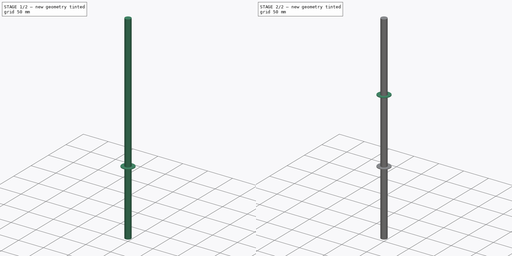
[diagram: build sequence overview — one tinted view per stage of 2, left to right]
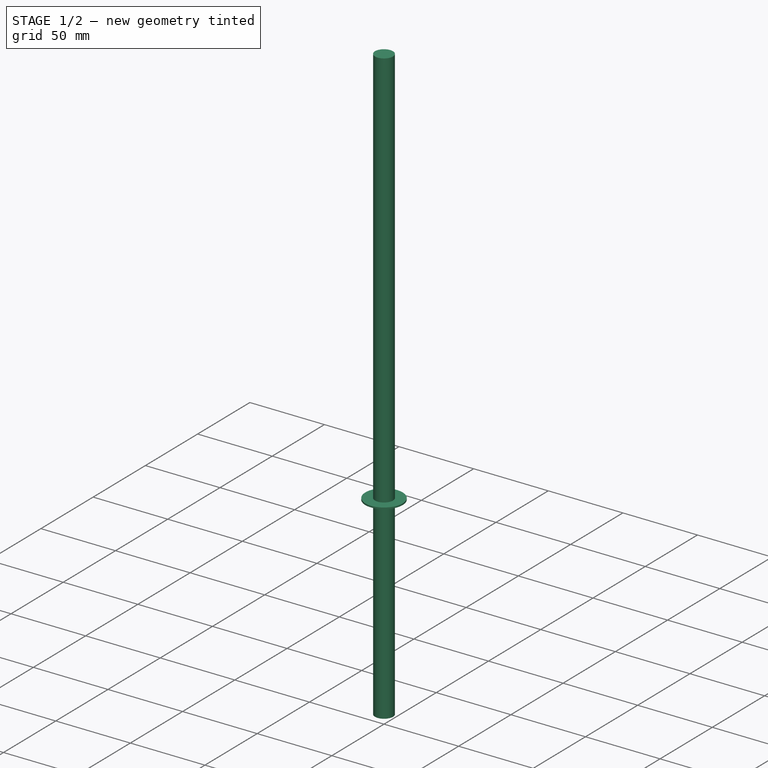
[diagram: stage 1 of 2 — iso view after this stage's code; geometry added in this stage tinted green]
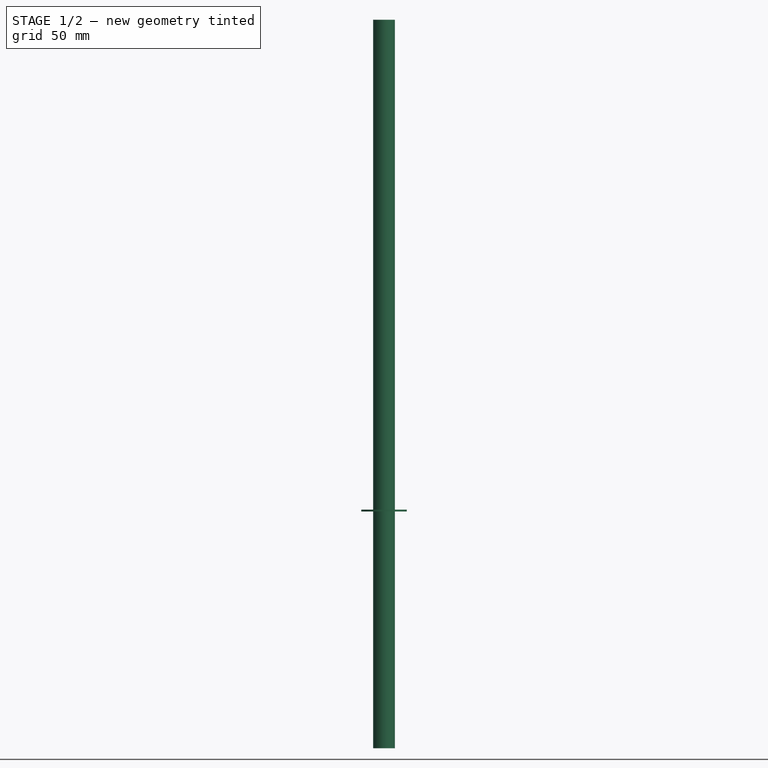
[diagram: stage 1 of 2 — front view after this stage's code; geometry added in this stage tinted green]
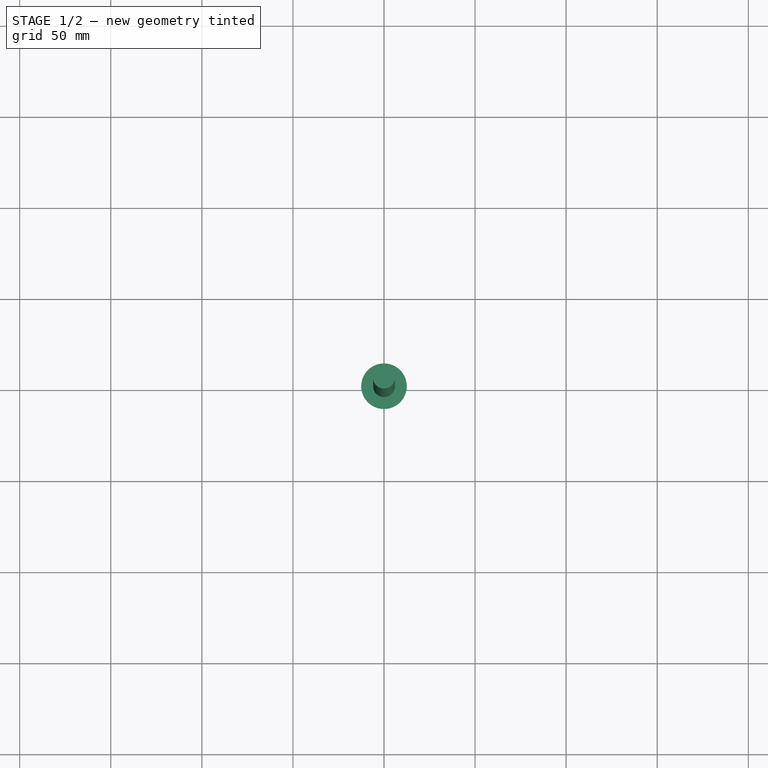
[diagram: stage 1 of 2 — top view after this stage's code; geometry added in this stage tinted green]
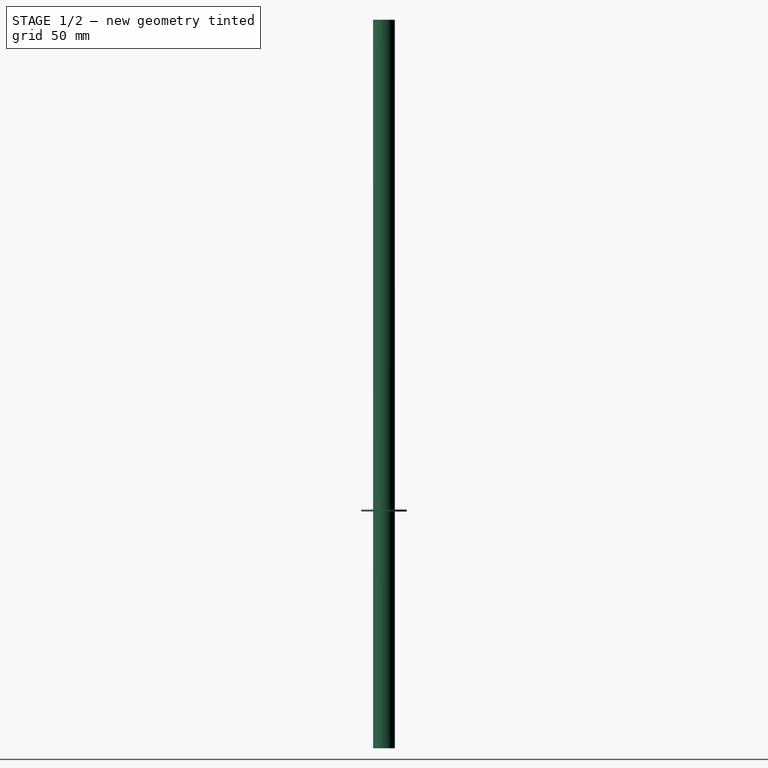
[diagram: stage 1 of 2 — right view after this stage's code; geometry added in this stage tinted green]
FCSTD DOCUMENT  (FreeCAD 0.20R29177 +426 (Git))
Label: Main_Rod
License: All rights reserved
LicenseURL: http://en.wikipedia.org/wiki/All_rights_reserved
objects: PartDesign::CoordinateSystem×4, Sketcher::SketchObject×3, PartDesign::Pad×3, PartDesign::Body×1
note: 14 computed .brp shape members not serialized (recipe doc carries the construction recipe); baked Part::Feature solids carry a one-line shape summary decoded from their .brp

FEATURE [Sketcher::SketchObject] Sketch019
  FullyConstrained = true
  MapMode = 5
  sketch-geometry (1):
    g0: Circle CenterX=0 CenterY=0 CenterZ=0 NormalX=0 NormalY=0 NormalZ=1 AngleXU=0 Radius=6
  constraints (2):
    c: Coincident(g0,g-1)
    c: Diameter(g0) = 12
FEATURE [PartDesign::Pad] Pad010
  Direction = (0,0,1)
  Length = 400
  Length2 = 10
  Profile = -> Sketch019
  ReferenceAxis = -> Sketch019 [N_Axis]
  Refine = true
  Reversed = true
  Type = 0
FEATURE [Sketcher::SketchObject] Sketch071
  AttachmentOffset = pos=(0,0,-270) rot=(0,0,1;0rad)
  FullyConstrained = true
  MapMode = 5
  Placement = pos=(0,0,-270) rot=(0,0,1;0rad)
  Support = -> [Pad010]
  sketch-geometry (1):
    g0: Circle CenterX=0 CenterY=0 CenterZ=0 NormalX=0 NormalY=0 NormalZ=1 AngleXU=0 Radius=12.5
  constraints (2):
    c: Coincident(g0,g-1)
    c: Diameter(g0) = 25
FEATURE [PartDesign::Pad] Pad
  BaseFeature = -> Pad010
  Direction = (0,0,1)
  Length = 1
  Length2 = 10
  Profile = -> Sketch071
  ReferenceAxis = -> Sketch071 [N_Axis]
  Type = 0
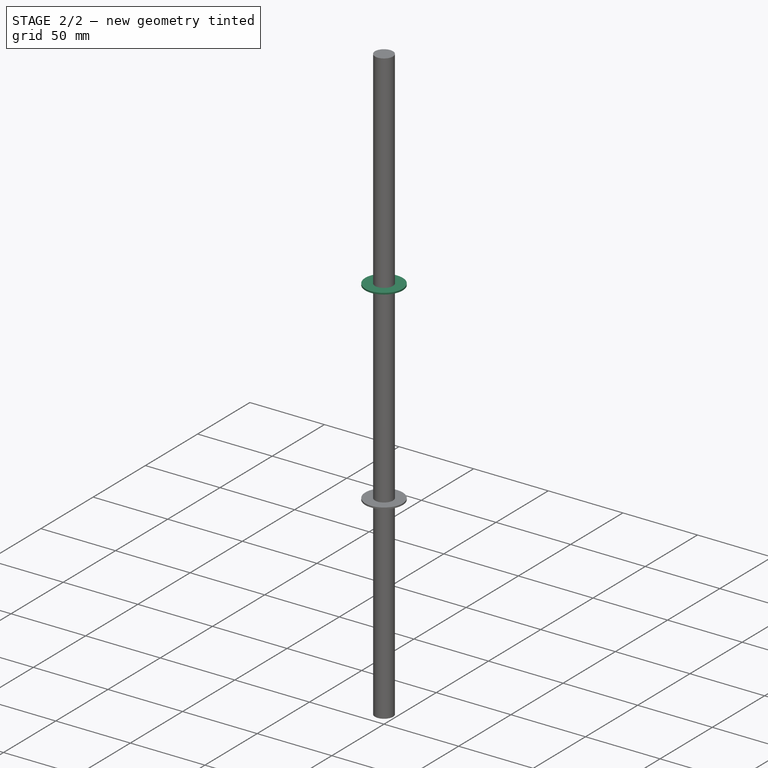
[diagram: stage 2 of 2 — iso view after this stage's code; geometry added in this stage tinted green]
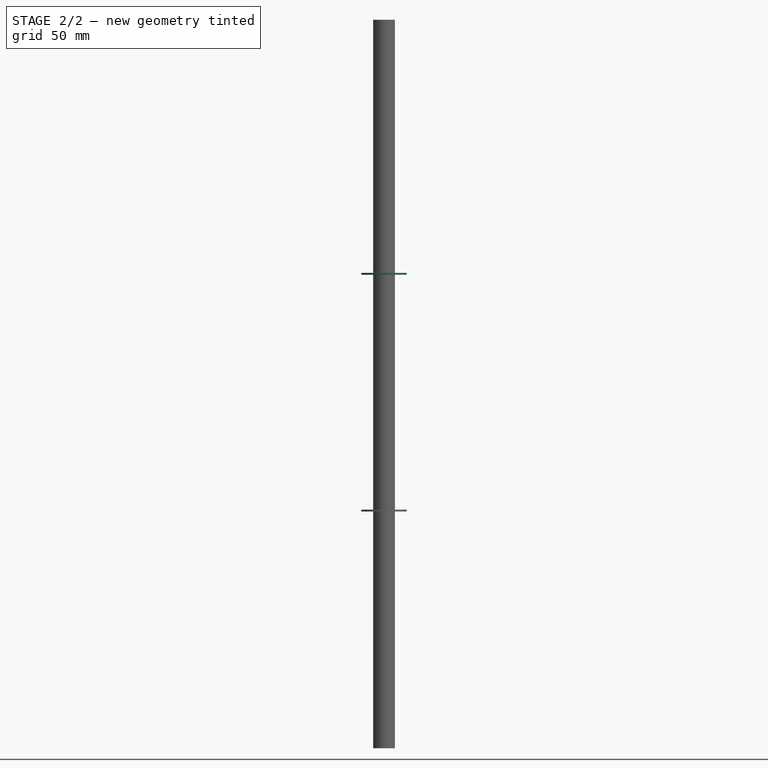
[diagram: stage 2 of 2 — front view after this stage's code; geometry added in this stage tinted green]
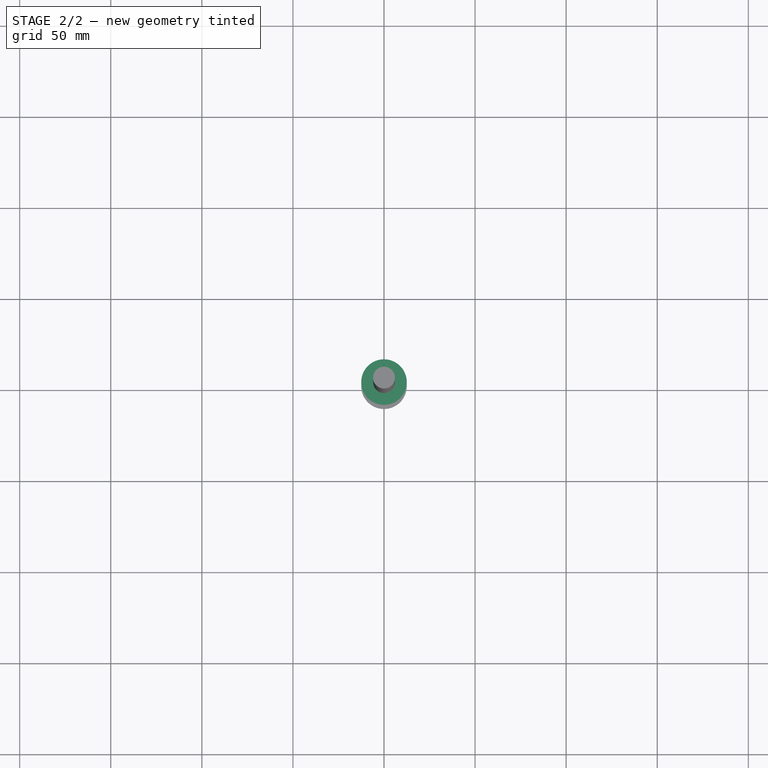
[diagram: stage 2 of 2 — top view after this stage's code; geometry added in this stage tinted green]
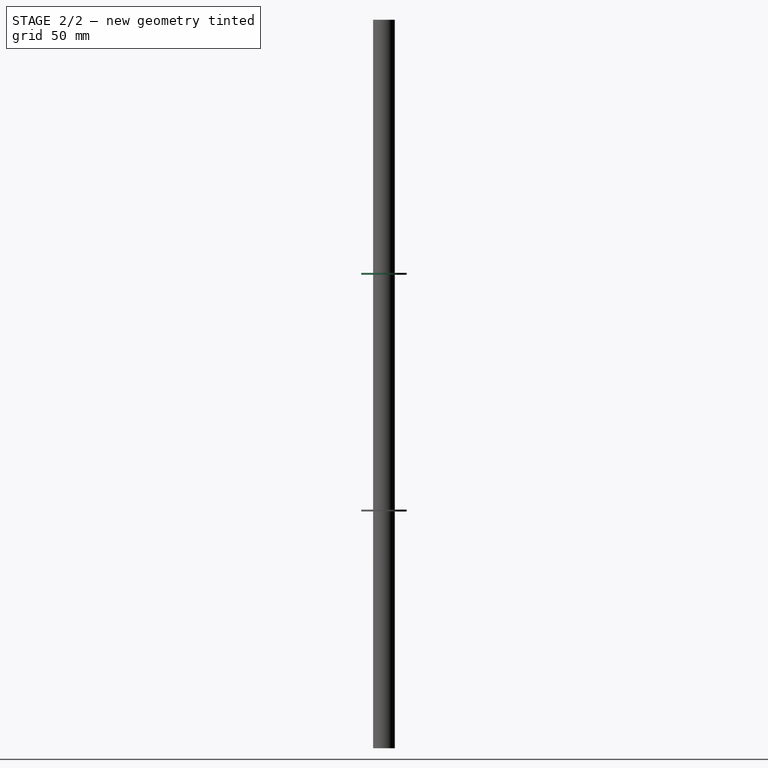
[diagram: stage 2 of 2 — right view after this stage's code; geometry added in this stage tinted green]
FEATURE [Sketcher::SketchObject] Sketch
  AttachmentOffset = pos=(0,0,-140) rot=(0,0,1;0rad)
  FullyConstrained = true
  MapMode = 5
  Placement = pos=(0,0,-140) rot=(0,0,1;0rad)
  Support = -> [Pad]
  sketch-geometry (1):
    g0: Circle CenterX=0 CenterY=0 CenterZ=0 NormalX=0 NormalY=0 NormalZ=1 AngleXU=0 Radius=12.5
  constraints (2):
    c: Coincident(g0,g-1)
    c: Diameter(g0) = 25
FEATURE [PartDesign::Pad] Pad011
  BaseFeature = -> Pad
  Direction = (0,0,1)
  Length = 1
  Length2 = 10
  Profile = -> Sketch
  ReferenceAxis = -> Sketch [N_Axis]
  Type = 0
FEATURE [PartDesign::CoordinateSystem] LCS_1
  AttacherType = Attacher::AttachEngine3D
  MapMode = 45
  Placement = pos=(9e-16,-4e-16,-400) rot=(0,0,1;0rad)
  Support = -> [Pad011]
FEATURE [PartDesign::CoordinateSystem] LCS_mid  label="LCS_mid_lower"
  AttacherType = Attacher::AttachEngine3D
  MapMode = 45
  Placement = pos=(3.6e-15,-1.4e-15,-270) rot=(0,0,1;0rad)
  Support = -> [Pad011]
FEATURE [PartDesign::CoordinateSystem] LCS_mid_upper
  AttacherType = Attacher::AttachEngine3D
  MapMode = 45
  Placement = pos=(3.6e-15,-1.4e-15,-140) rot=(0,0,1;0rad)
  Support = -> [Pad011]
FEATURE [PartDesign::CoordinateSystem] LCS_ImageRecogBox
  AttacherType = Attacher::AttachEngine3D
  MapMode = 45
  Placement = pos=(9e-16,-4e-16,0) rot=(0,0,1;0rad)
  Support = -> [Pad011]
FEATURE [PartDesign::Body] Body007  label="Rod"
  Group = -> [Sketch019,Pad010,Sketch071,Pad,Sketch,Pad011,LCS_1,LCS_mid,LCS_mid_upper,LCS_ImageRecogBox]
  Origin = -> Origin007
  Placement = pos=(3,54.9,405.8) rot=(0,0,1;0rad)
  Tip = -> Pad011
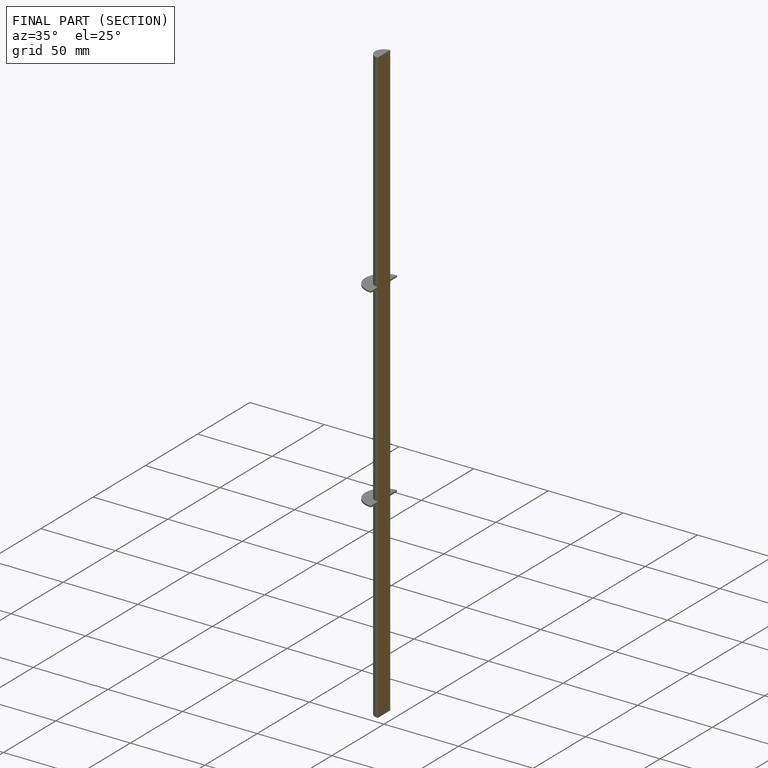
[diagram: finished part — half-section view (interior)]
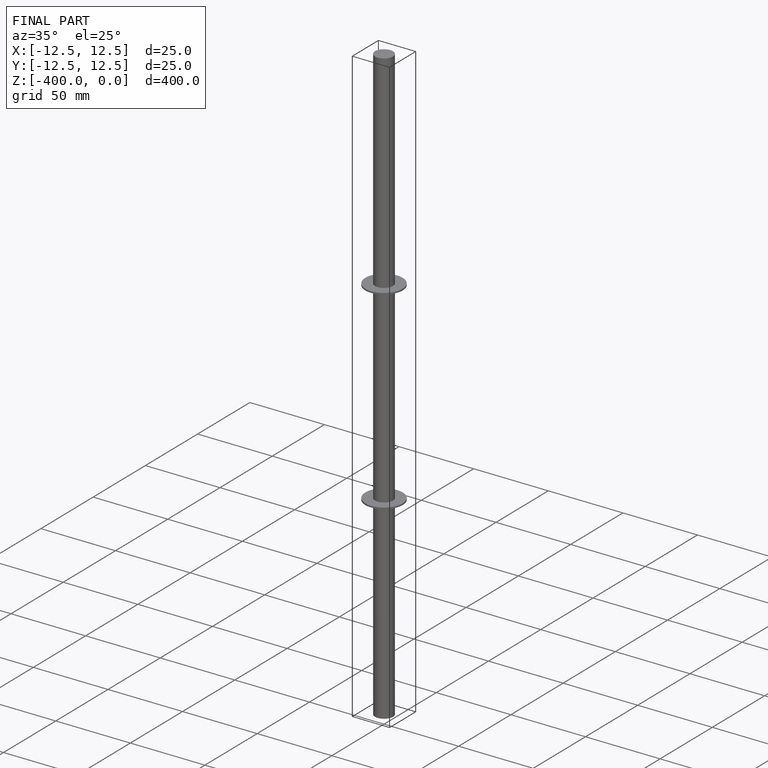
[diagram: finished part — iso view with bounding-box wireframe]
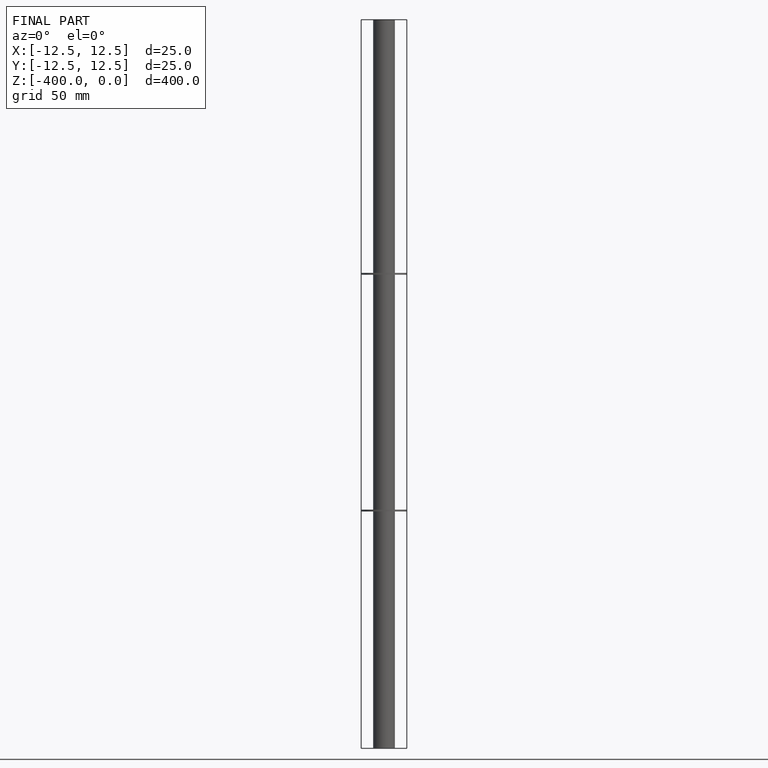
[diagram: finished part — front view with bounding-box wireframe]
